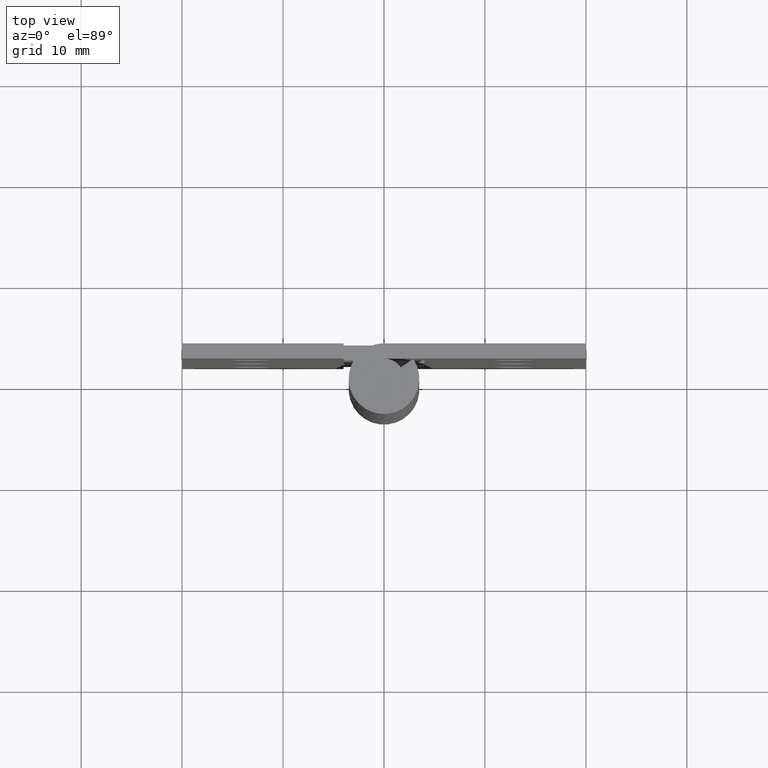
[diagram: clean part render]
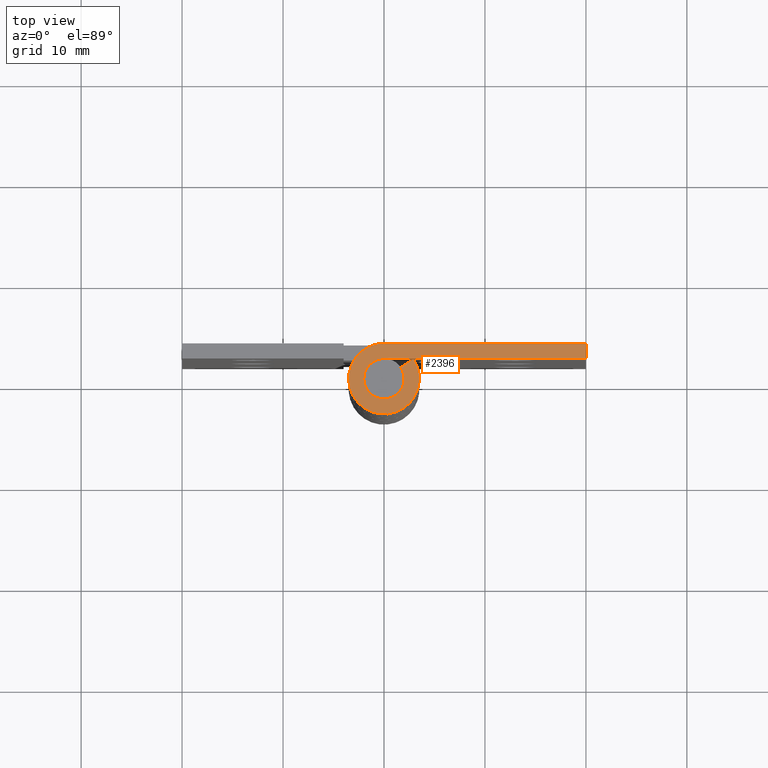
[diagram: same view with one face highlighted and labeled with its STEP entity id]
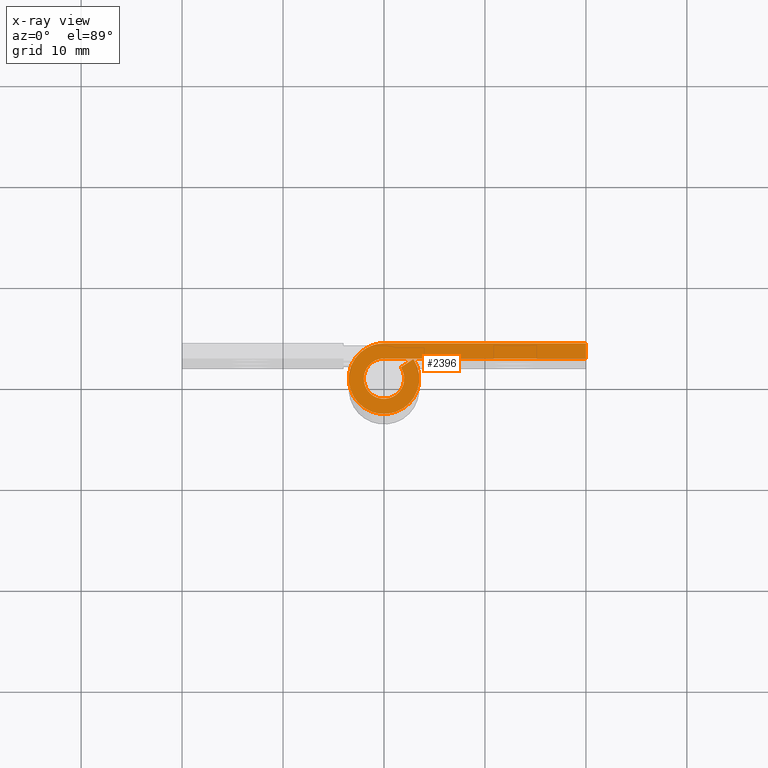
[diagram: x-ray of the same camera — body ghosted, the highlighted face saturated]
A machine part, top view. The second image highlights one B-rep face of the part: STEP entity #2396.
The next image is the same camera in x-ray: the body ghosted, the highlighted face saturated — about 0% of this face is hidden behind the body in this view.
In plain terms, the highlighted face is a freeform B-spline surface patch.
Its self-contained STEP definition (entity closure, byte-faithful):
#2319=CARTESIAN_POINT('',(-4.673075646489244,-3.846650850724252,60.0));
#2320=CARTESIAN_POINT('',(21.173789937405989,-3.846650850724252,60.0));
#2321=CARTESIAN_POINT('',(-4.673075646489244,3.849507494151526,60.0));
#2322=CARTESIAN_POINT('',(21.173789937405989,3.849507494151526,60.0));
#2323=B_SPLINE_SURFACE_WITH_KNOTS('',1,1,((#2319,#2321),(#2320,#2322)),.UNSPECIFIED.,.F.,.F.,.U.,(2,2),(2,2),(0.0,25.846865583895241),(0.0,7.696158344875778),.UNSPECIFIED.);
#2324=CARTESIAN_POINT('',(-6.429183E-016,3.500000000000000,60.0));
#2325=VERTEX_POINT('',#2324);
#2326=CARTESIAN_POINT('',(20.0,3.500000000000000,60.0));
#2327=VERTEX_POINT('',#2326);
#2328=CARTESIAN_POINT('',(-6.429183E-016,3.500000000000000,60.0));
#2329=CARTESIAN_POINT('',(20.0,3.500000000000000,60.0));
#2330=QUASI_UNIFORM_CURVE('',1,(#2328,#2329),.UNSPECIFIED.,.F.,.U.);
#2331=EDGE_CURVE('',#2325,#2327,#2330,.T.);
#2332=ORIENTED_EDGE('',*,*,#2331,.F.);
#2333=CARTESIAN_POINT('',(2.906458325866720,1.950000000000000,60.0));
#2334=VERTEX_POINT('',#2333);
#2335=CARTESIAN_POINT('',(2.906458325866722,1.950000000000003,60.0));
#2336=CARTESIAN_POINT('',(4.428995672699895,-0.319328896485279,60.000000000000014));
#2337=CARTESIAN_POINT('',(2.596662639363708,-2.346772919848170,60.0));
#2338=CARTESIAN_POINT('',(0.764329606027520,-4.374216943211063,60.000000000000014));
#2339=CARTESIAN_POINT('',(-1.646966909200061,-3.088284313336452,60.0));
#2340=CARTESIAN_POINT('',(-4.058263424427636,-1.802351683461844,60.000000000000014));
#2341=CARTESIAN_POINT('',(-3.395511382448717,0.848824158269075,60.0));
#2342=CARTESIAN_POINT('',(-2.732759340469794,3.500000000000000,60.000000000000014));
#2343=CARTESIAN_POINT('',(0.0,3.500000000000000,60.0));
#2351=(BOUNDED_CURVE()B_SPLINE_CURVE(2,(#2335,#2336,#2337,#2338,#2339,#2340,#2341,#2342,#2343),.UNSPECIFIED.,.F.,.U.)B_SPLINE_CURVE_WITH_KNOTS((3,2,2,2,3),(0.0,0.250000000000000,0.500000000000000,0.750000000000000,1.0),.UNSPECIFIED.)CURVE()GEOMETRIC_REPRESENTATION_ITEM()RATIONAL_B_SPLINE_CURVE((1.0,0.788200858942973,1.0,0.788200858942973,1.0,0.788200858942973,1.0,0.788200858942973,1.0))REPRESENTATION_ITEM(''));
#2352=EDGE_CURVE('',#2334,#2325,#2351,.T.);
#2353=ORIENTED_EDGE('',*,*,#2352,.F.);
#2354=CARTESIAN_POINT('',(1.660833329066700,1.114285714285716,60.0));
#2355=VERTEX_POINT('',#2354);
#2356=CARTESIAN_POINT('',(1.660833329066700,1.114285714285716,60.0));
#2357=CARTESIAN_POINT('',(2.906458325866720,1.950000000000000,60.0));
#2358=QUASI_UNIFORM_CURVE('',1,(#2356,#2357),.UNSPECIFIED.,.F.,.U.);
#2359=EDGE_CURVE('',#2355,#2334,#2358,.T.);
#2360=ORIENTED_EDGE('',*,*,#2359,.F.);
#2361=CARTESIAN_POINT('',(0.0,2.0,60.0));
#2362=VERTEX_POINT('',#2361);
#2363=CARTESIAN_POINT('',(1.660833329066698,1.114285714285716,60.0));
#2364=CARTESIAN_POINT('',(2.530854670114226,-0.182473655134445,60.000000000000007));
#2365=CARTESIAN_POINT('',(1.483807222493547,-1.341013097056097,60.0));
#2366=CARTESIAN_POINT('',(0.436759774872868,-2.499552538977749,60.000000000000007));
#2367=CARTESIAN_POINT('',(-0.941123948114321,-1.764733893335115,60.0));
#2368=CARTESIAN_POINT('',(-2.319007671101507,-1.029915247692483,60.000000000000007));
#2369=CARTESIAN_POINT('',(-1.940292218542124,0.485042376153757,60.0));
#2370=CARTESIAN_POINT('',(-1.561576765982740,2.000000000000000,60.000000000000007));
#2371=CARTESIAN_POINT('',(0.0,2.0,60.0));
#2379=(BOUNDED_CURVE()B_SPLINE_CURVE(2,(#2363,#2364,#2365,#2366,#2367,#2368,#2369,#2370,#2371),.UNSPECIFIED.,.F.,.U.)B_SPLINE_CURVE_WITH_KNOTS((3,2,2,2,3),(0.0,0.250000000000000,0.500000000000000,0.750000000000000,1.0),.UNSPECIFIED.)CURVE()GEOMETRIC_REPRESENTATION_ITEM()RATIONAL_B_SPLINE_CURVE((1.0,0.788200858942972,1.0,0.788200858942972,1.0,0.788200858942972,1.0,0.788200858942972,1.0))REPRESENTATION_ITEM(''));
#2380=EDGE_CURVE('',#2355,#2362,#2379,.T.);
#2381=ORIENTED_EDGE('',*,*,#2380,.T.);
#2382=CARTESIAN_POINT('',(20.0,2.0,60.0));
#2383=VERTEX_POINT('',#2382);
#2384=CARTESIAN_POINT('',(20.0,2.0,60.0));
#2385=CARTESIAN_POINT('',(0.0,2.0,60.0));
#2386=QUASI_UNIFORM_CURVE('',1,(#2384,#2385),.UNSPECIFIED.,.F.,.U.);
#2387=EDGE_CURVE('',#2383,#2362,#2386,.T.);
#2388=ORIENTED_EDGE('',*,*,#2387,.F.);
#2389=CARTESIAN_POINT('',(20.0,3.500000000000000,60.0));
#2390=CARTESIAN_POINT('',(20.0,2.0,60.0));
#2391=QUASI_UNIFORM_CURVE('',1,(#2389,#2390),.UNSPECIFIED.,.F.,.U.);
#2392=EDGE_CURVE('',#2327,#2383,#2391,.T.);
#2393=ORIENTED_EDGE('',*,*,#2392,.F.);
#2394=EDGE_LOOP('',(#2332,#2353,#2360,#2381,#2388,#2393));
#2395=FACE_OUTER_BOUND('',#2394,.T.);
#2396=ADVANCED_FACE('',(#2395),#2323,.T.);